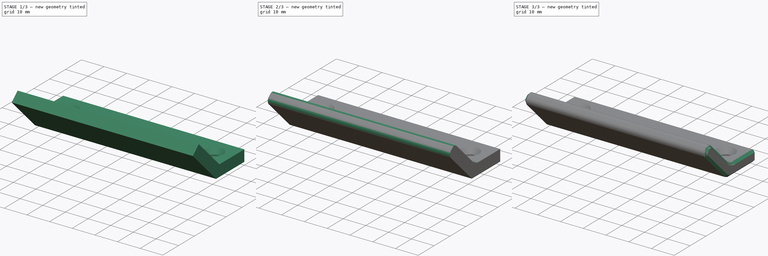
[diagram: build sequence overview — one tinted view per stage of 3, left to right]
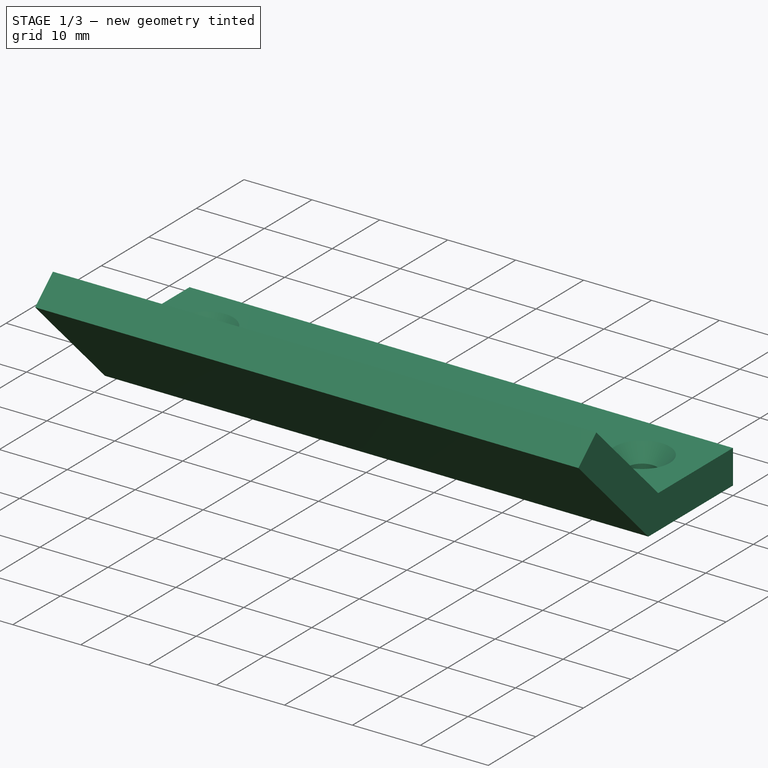
[diagram: stage 1 of 3 — iso view after this stage's code; geometry added in this stage tinted green]
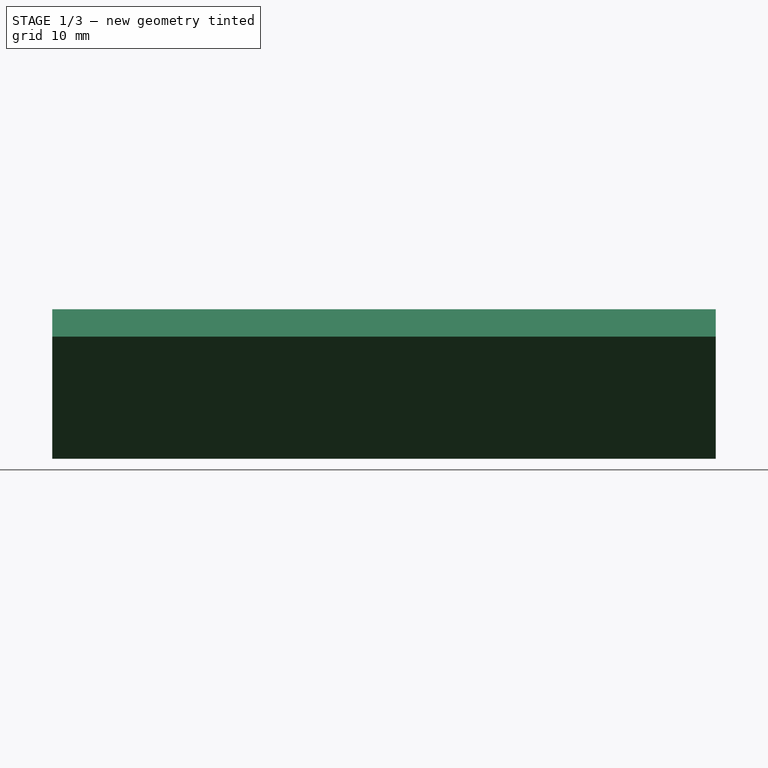
[diagram: stage 1 of 3 — front view after this stage's code; geometry added in this stage tinted green]
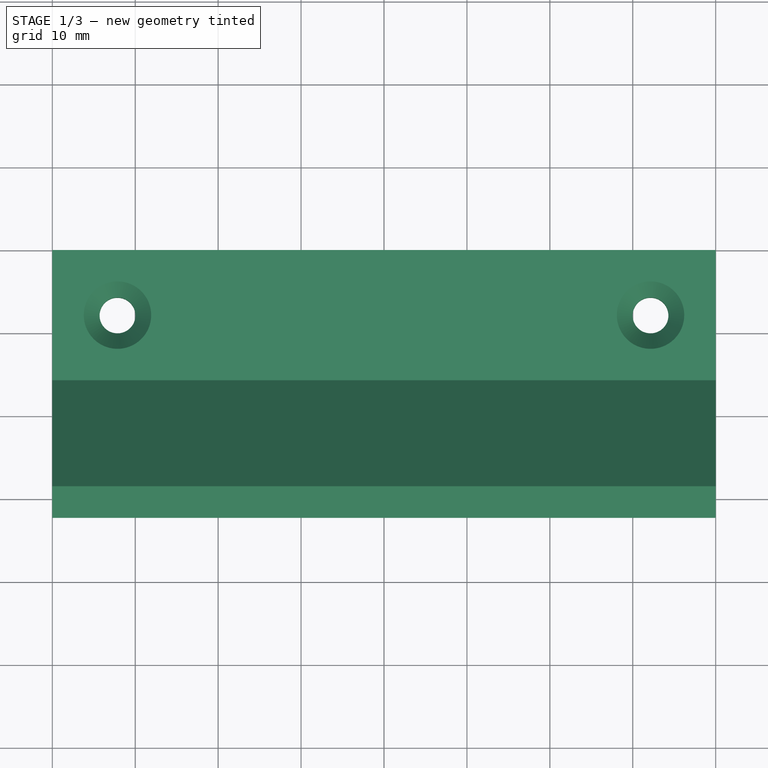
[diagram: stage 1 of 3 — top view after this stage's code; geometry added in this stage tinted green]
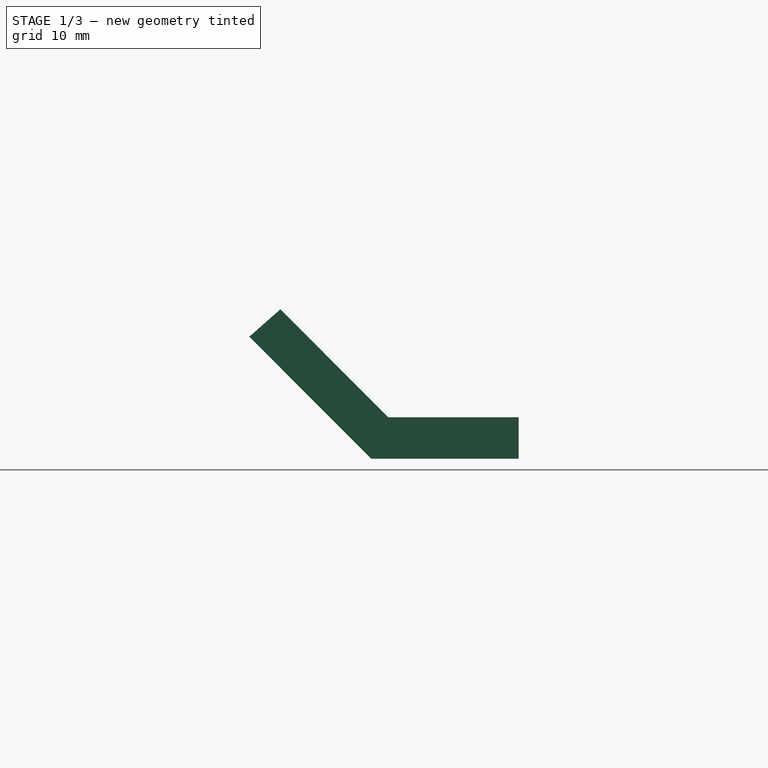
[diagram: stage 1 of 3 — right view after this stage's code; geometry added in this stage tinted green]
FCSTD DOCUMENT  (FreeCAD 0.22R38314 (Git))
Label: Lid_Handle
License: All rights reserved
LicenseURL: https://en.wikipedia.org/wiki/All_rights_reserved
objects: Sketcher::SketchObject×2, PartDesign::Fillet×2, PartDesign::Chamfer×2, PartDesign::Pad×1, PartDesign::Hole×1, PartDesign::Body×1
note: 21 computed .brp shape members not serialized (recipe doc carries the construction recipe); baked Part::Feature solids carry a one-line shape summary decoded from their .brp

FEATURE [Sketcher::SketchObject] Sketch  label="Main_Sketch"
  AttachmentSupport = -> [YZ_Plane]
  FullyConstrained = false
  MapMode = 5
  Placement = pos=(0,0,0) rot=(0.57735,0.57735,0.57735;2.0944rad)
  sketch-geometry (7):
    g0: LineSegment StartX=0 StartY=0 StartZ=0 EndX=0 EndY=5 EndZ=0
    g1: LineSegment StartX=-17.78 StartY=0 StartZ=0 EndX=0 EndY=0 EndZ=0
    g2: LineSegment StartX=-15.7197 StartY=5 StartZ=0 EndX=-28.7268 EndY=18.0319 EndZ=0
    g3: LineSegment StartX=-28.7268 StartY=18.0319 StartZ=0 EndX=-32.4775 EndY=14.7254 EndZ=0
    g4: LineSegment StartX=-32.4775 StartY=14.7254 StartZ=0 EndX=-17.78 EndY=0 EndZ=0
    g5: LineSegment StartX=-15.7197 StartY=5 StartZ=0 EndX=-19.2518 EndY=1.4746 EndZ=0
    g6: LineSegment StartX=0 StartY=5 StartZ=0 EndX=-15.7197 EndY=5 EndZ=0
  constraints (17):
    c: Coincident(g1,g0)
    c: Vertical(g0)
    c: Horizontal(g1)
    c: Coincident(g0,g-1)
    c: DistanceY(g0,g0) = 5
    c: Coincident(g3,g2)
    c: Coincident(g4,g3)
    c: Distance(g3,g3) = 5
    c: Coincident(g5,g2)
    c: PointOnObject(g5,g4)
    c: Perpendicular(g2,g5)
    c: Parallel(g4,g2)
    c: Coincident(g4,g1)
    c: Coincident(g6,g0)
    c: Coincident(g6,g2)
    c: Perpendicular(g0,g6)
    c: DistanceX(g1,g1) = 17.78
FEATURE [PartDesign::Pad] Pad  label="Main_Pad"
  Direction = (1,0,0)
  Length = 80
  Length2 = 10
  Placement = pos=(0,0,0) rot=(1,1,1;2.0944rad)
  Profile = -> Sketch
  ReferenceAxis = -> Sketch [N_Axis]
  Refine = true
  Suppressed = false
  Type = 0
FEATURE [Sketcher::SketchObject] Sketch001
  AttachmentSupport = -> [Pad]
  ExternalGeometry = -> [Pad]
  FullyConstrained = false
  MapMode = 5
  Placement = pos=(-6e-16,1.7e-15,5) rot=(0,0,-1;1.5708rad)
  sketch-geometry (6):
    g0: LineSegment StartX=3.66e-14 StartY=80 StartZ=0 EndX=7.85984 EndY=72.1402 EndZ=0
    g1: LineSegment StartX=15.7197 StartY=80 StartZ=0 EndX=7.85984 EndY=72.1402 EndZ=0
    g2: LineSegment StartX=0 StartY=0 StartZ=0 EndX=7.85984 EndY=7.85984 EndZ=0
    g3: LineSegment StartX=7.85984 StartY=7.85984 StartZ=0 EndX=15.7197 EndY=-4.4e-15 EndZ=0
    g4: Circle CenterX=7.85984 CenterY=7.85984 CenterZ=0 NormalX=0 NormalY=0 NormalZ=1 AngleXU=0 Radius=2.82321
    g5: Circle CenterX=7.85984 CenterY=72.1402 CenterZ=0 NormalX=0 NormalY=0 NormalZ=1 AngleXU=0 Radius=1.32263
  constraints (12):
    c: Coincident(g0,g-6)
    c: Coincident(g1,g-4)
    c: Coincident(g1,g0)
    c: Coincident(g2,g-1)
    c: Coincident(g3,g2)
    c: Coincident(g3,g-5)
    c: Equal(g3,g2)
    c: Equal(g0,g1)
    c: Angle(g1,g0) = 1.5708
    c: Angle(g2,g3) = 1.5708
    c: Coincident(g4,g2)
    c: Coincident(g5,g0)
FEATURE [PartDesign::Hole] Hole  label="Screw_Hole"
  BaseFeature = -> Pad
  CustomThreadClearance = 0
  Depth = 25
  DepthType = 0
  Diameter = 4.318
  DrillForDepth = false
  DrillPoint = 1
  DrillPointAngle = 118
  HoleCutCountersinkAngle = 82
  HoleCutCustomValues = false
  HoleCutDepth = 0
  HoleCutDiameter = 8.128
  HoleCutType = 2
  ModelThread = false
  Placement = pos=(0,0,0) rot=(1,1,1;2.0944rad)
  Profile = -> Sketch001
  Refine = true
  Suppressed = false
  Tapered = false
  TaperedAngle = 90
  ThreadClass = 0
  ThreadDepth = 25
  ThreadDepthType = 0
  ThreadDirection = 0
  ThreadFit = 0
  ThreadSize = 0
  ThreadType = 0
  Threaded = false
  UseCustomThreadClearance = false
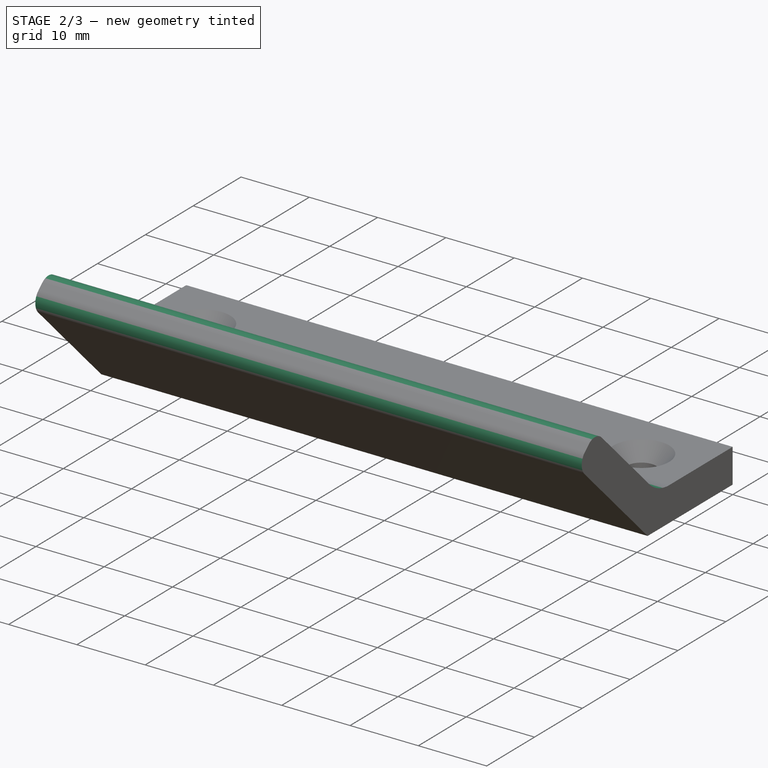
[diagram: stage 2 of 3 — iso view after this stage's code; geometry added in this stage tinted green]
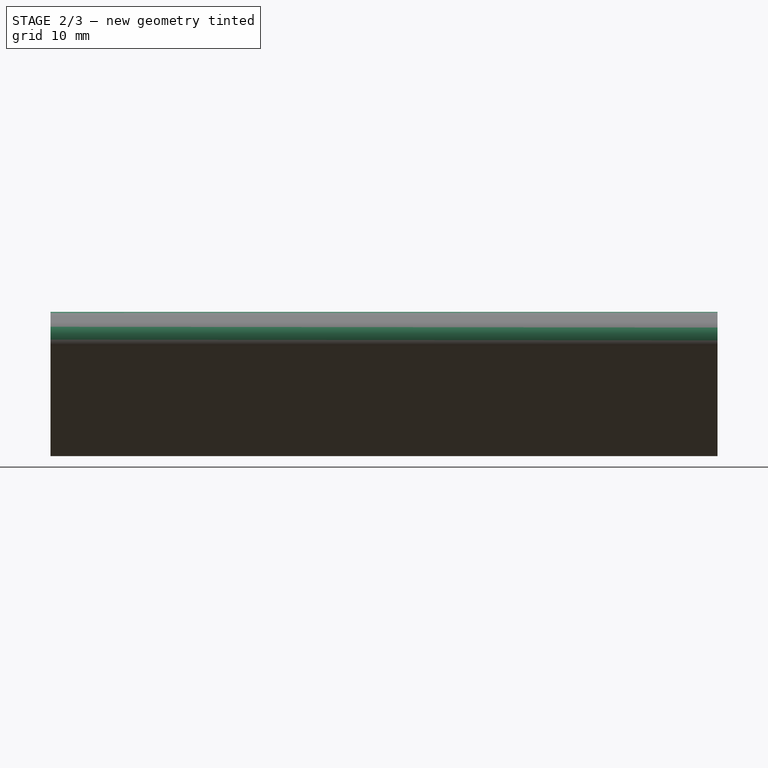
[diagram: stage 2 of 3 — front view after this stage's code; geometry added in this stage tinted green]
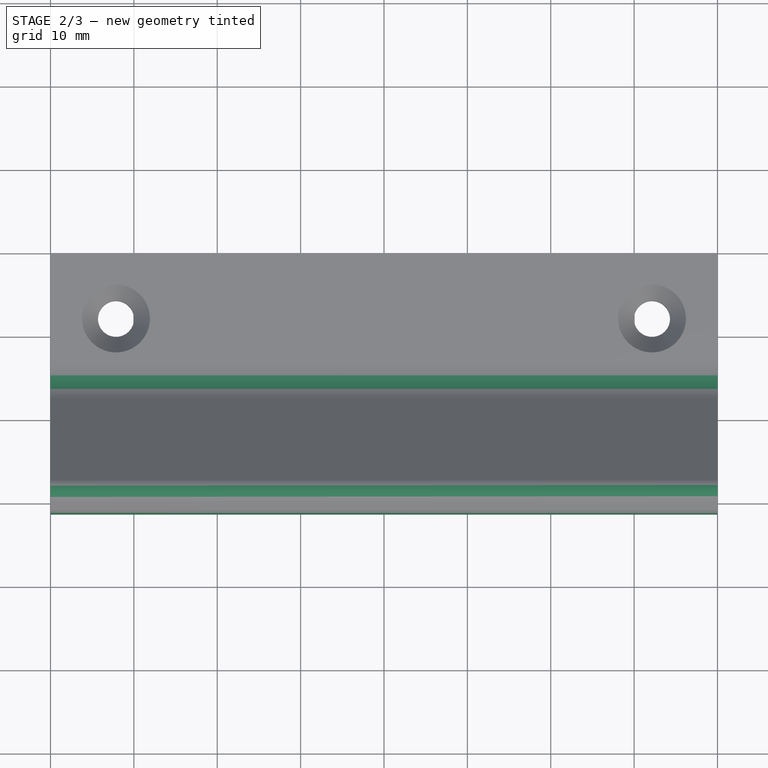
[diagram: stage 2 of 3 — top view after this stage's code; geometry added in this stage tinted green]
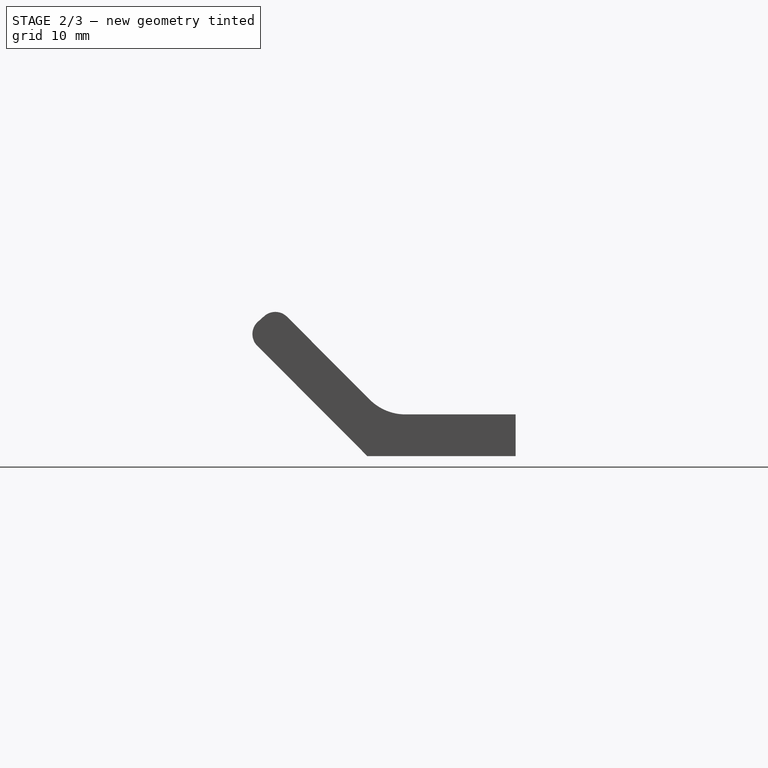
[diagram: stage 2 of 3 — right view after this stage's code; geometry added in this stage tinted green]
FEATURE [PartDesign::Fillet] Fillet  label="Handle_End_Fillet"
  Base = -> Hole [Edge21,Edge26]
  BaseFeature = -> Hole
  Placement = pos=(0,0,0) rot=(1,1,1;2.0944rad)
  Radius = 2
  Refine = true
  SupportTransform = false
  Suppressed = false
  UseAllEdges = false
FEATURE [PartDesign::Fillet] Fillet001  label="Inner_Fillet"
  Base = -> Fillet [Edge10]
  BaseFeature = -> Fillet
  Placement = pos=(0,0,0) rot=(1,1,1;2.0944rad)
  Radius = 6
  Refine = true
  SupportTransform = false
  Suppressed = false
  UseAllEdges = false
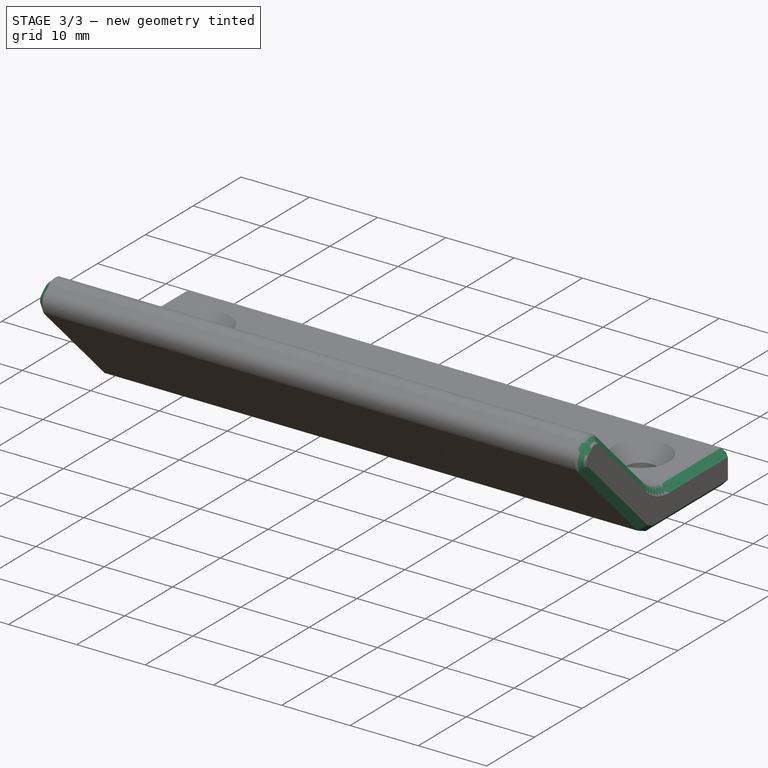
[diagram: stage 3 of 3 — iso view after this stage's code; geometry added in this stage tinted green]
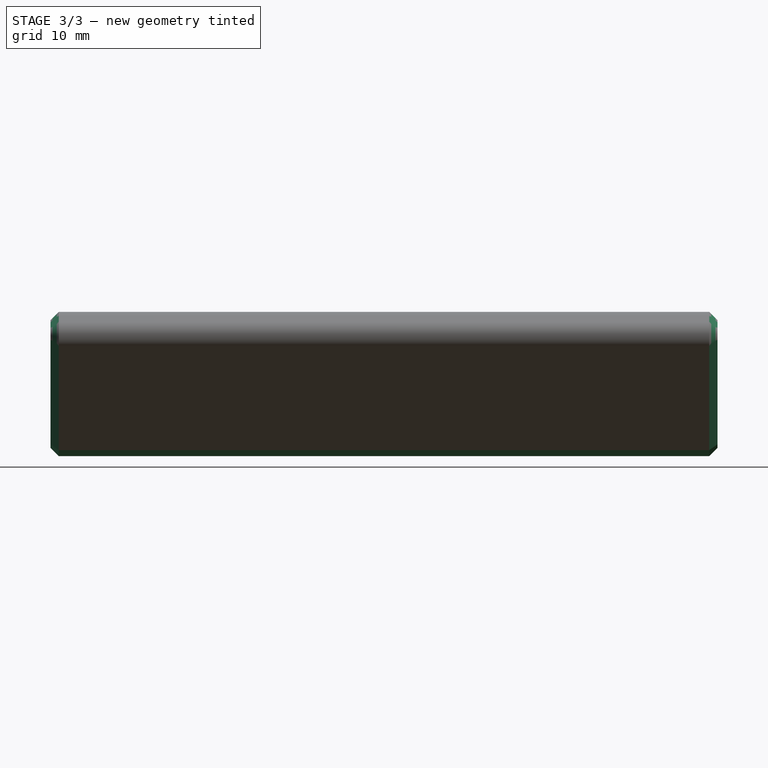
[diagram: stage 3 of 3 — front view after this stage's code; geometry added in this stage tinted green]
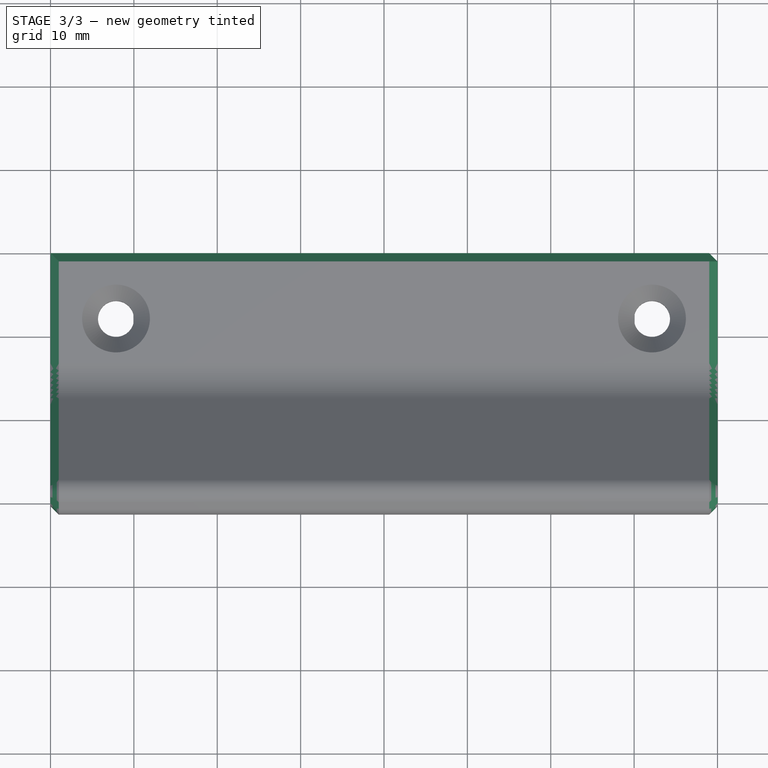
[diagram: stage 3 of 3 — top view after this stage's code; geometry added in this stage tinted green]
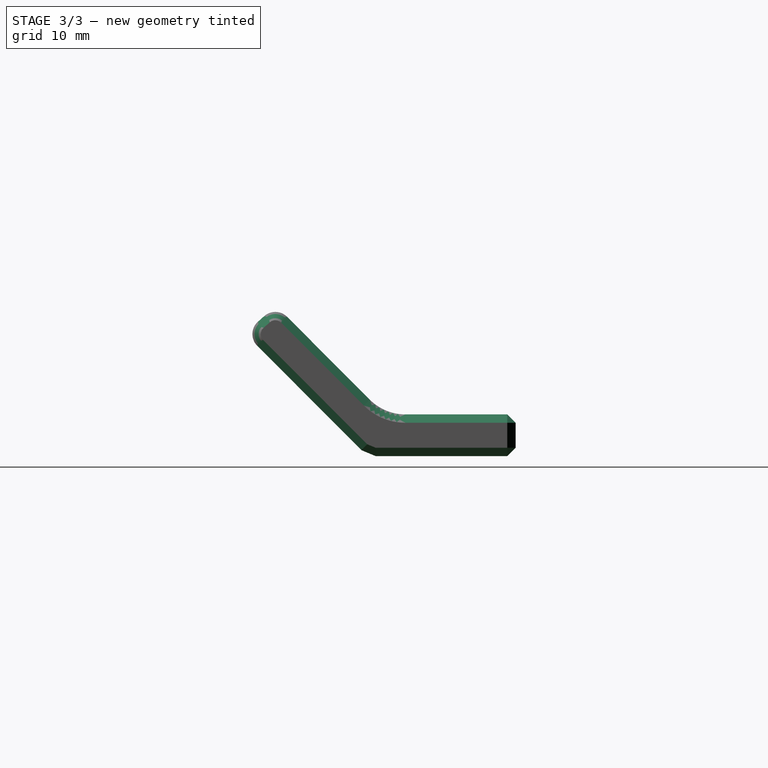
[diagram: stage 3 of 3 — right view after this stage's code; geometry added in this stage tinted green]
FEATURE [PartDesign::Chamfer] Chamfer  label="Outer_Chamfer"
  Angle = 45
  Base = -> Fillet001 [Edge31,Edge26,Edge16,Edge22,Edge12,Edge14,Edge18,Edge28,Edge24,Edge17,Edge23,Edge8,Edge4,Edge9,Edge1,Edge2,Edge3,Edge7,Vertex6,Edge5,Edge27]
  BaseFeature = -> Fillet001
  ChamferType = 0
  FlipDirection = false
  Placement = pos=(0,0,0) rot=(1,1,1;2.0944rad)
  Refine = true
  Size = 1
  Size2 = 1
  SupportTransform = false
  Suppressed = false
  UseAllEdges = false
FEATURE [PartDesign::Chamfer] Chamfer001  label="Hole_Chamfer"
  Angle = 45
  Base = -> Chamfer [Edge43,Edge42]
  BaseFeature = -> Chamfer
  ChamferType = 0
  FlipDirection = false
  Placement = pos=(0,0,0) rot=(1,1,1;2.0944rad)
  Refine = true
  Size = 0.4
  Size2 = 1
  SupportTransform = false
  Suppressed = false
  UseAllEdges = false
FEATURE [PartDesign::Body] Body
  AllowCompound = false
  Group = -> [Sketch,Pad,Sketch001,Hole,Fillet,Fillet001,Chamfer,Chamfer001]
  Origin = -> Origin
  Tip = -> Chamfer001
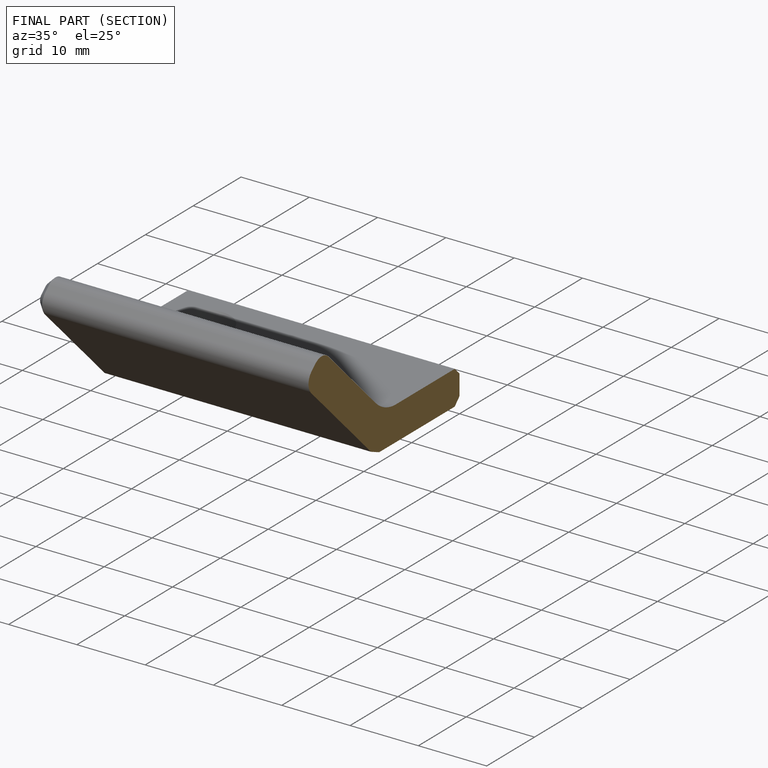
[diagram: finished part — half-section view (interior)]
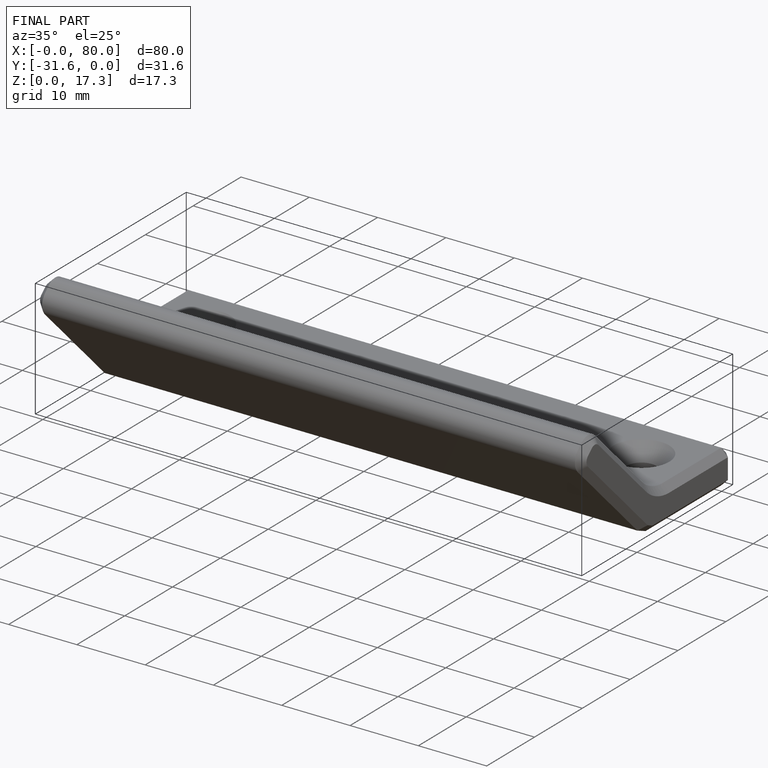
[diagram: finished part — iso view with bounding-box wireframe]
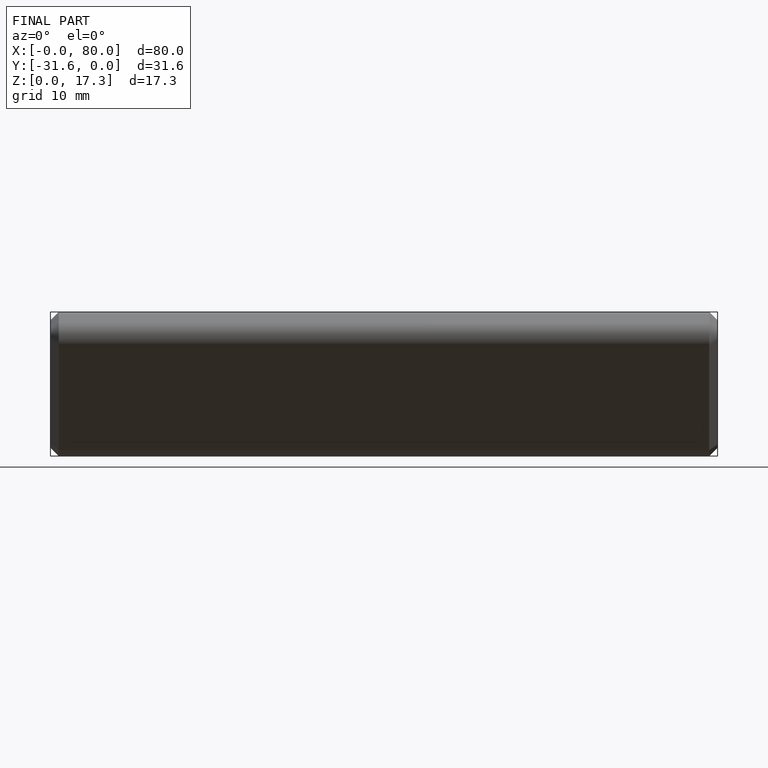
[diagram: finished part — front view with bounding-box wireframe]
